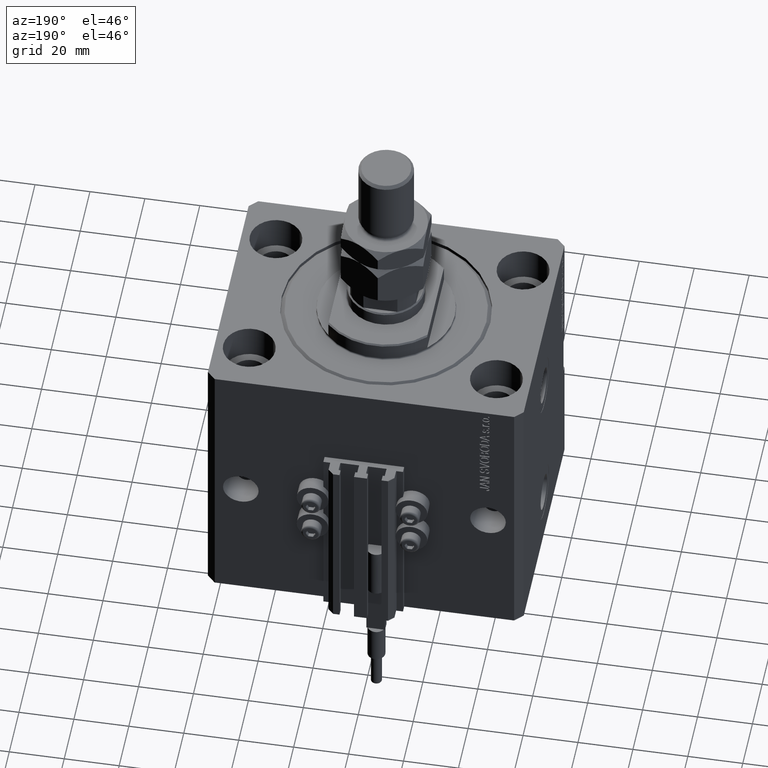
[diagram: clean part render]
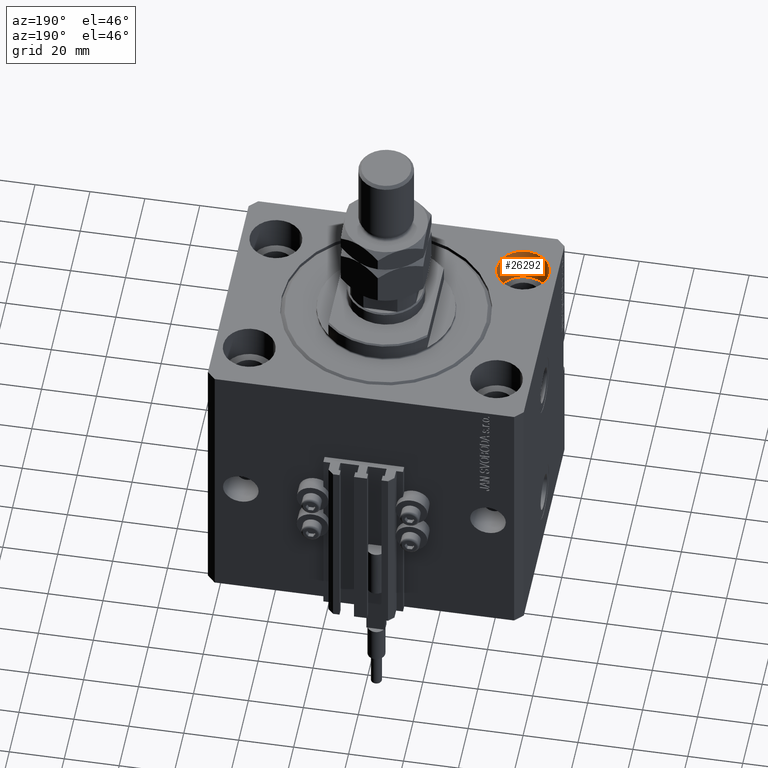
[diagram: same view with one face highlighted and labeled with its STEP entity id]
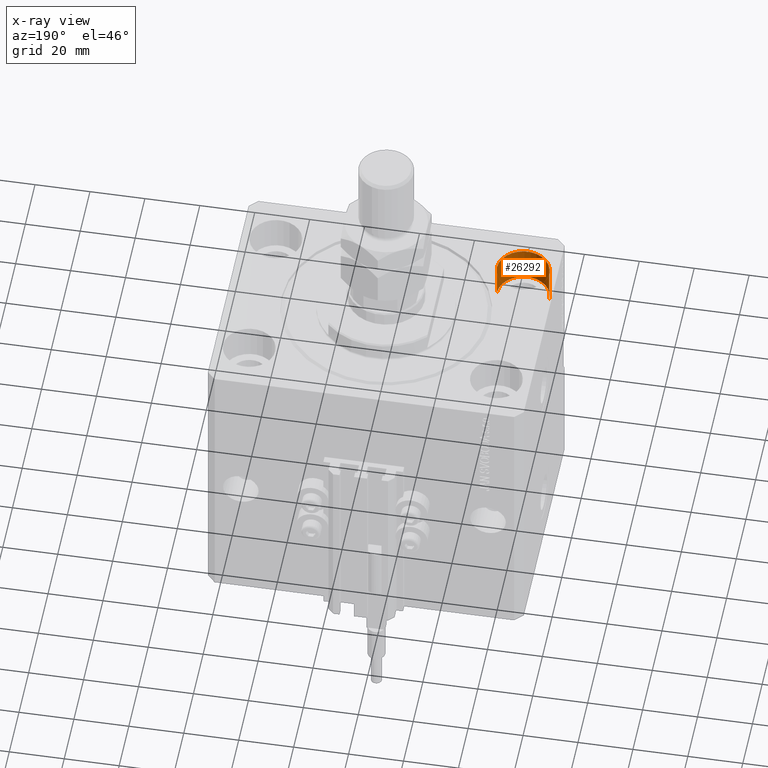
[diagram: x-ray of the same camera — body ghosted, the highlighted face saturated]
A machine part, auxiliary view. The second image highlights one B-rep face of the part: STEP entity #26292.
The next image is the same camera in x-ray: the body ghosted, the highlighted face saturated — about 0% of this face is hidden behind the body in this view.
In plain terms, the highlighted cylindrical surface (edge-blend (fillet) strip) has radius 9.5 mm, axis along (0, 0, 1).
Its self-contained STEP definition (entity closure, byte-faithful):
#984 = AXIS2_PLACEMENT_3D ( 'NONE', #48325, #45715, #2361 ) ;
#2361 = DIRECTION ( 'NONE',  ( 1.000000000000000000, 0.000000000000000000, 0.000000000000000000 ) ) ;
#2521 = ORIENTED_EDGE ( 'NONE', *, *, #39406, .F. ) ;
#2628 = CIRCLE ( 'NONE', #984, 9.500000000000001776 ) ;
#5142 = DIRECTION ( 'NONE',  ( -0.000000000000000000, -0.000000000000000000, 1.000000000000000000 ) ) ;
#5429 = VERTEX_POINT ( 'NONE', #21207 ) ;
#7699 = ORIENTED_EDGE ( 'NONE', *, *, #34744, .T. ) ;
#8762 = CARTESIAN_POINT ( 'NONE',  ( -54.50000000000000000, -27.49999999999999645, -13.00000000000000000 ) ) ;
#8875 = EDGE_CURVE ( 'NONE', #5429, #16044, #2628, .T. ) ;
#12256 = DIRECTION ( 'NONE',  ( -0.000000000000000000, -0.000000000000000000, 1.000000000000000000 ) ) ;
#13161 = DIRECTION ( 'NONE',  ( 1.000000000000000000, 0.000000000000000000, 0.000000000000000000 ) ) ;
#13666 = CARTESIAN_POINT ( 'NONE',  ( -45.00000000000000000, -27.49999999999999645, 0.000000000000000000 ) ) ;
#16044 = VERTEX_POINT ( 'NONE', #20686 ) ;
#17024 = LINE ( 'NONE', #8762, #21968 ) ;
#17801 = ORIENTED_EDGE ( 'NONE', *, *, #8875, .F. ) ;
#19674 = AXIS2_PLACEMENT_3D ( 'NONE', #13666, #43891, #13161 ) ;
#20686 = CARTESIAN_POINT ( 'NONE',  ( -35.50000000000000000, -27.49999999999999645, -13.00000000000000000 ) ) ;
#21207 = CARTESIAN_POINT ( 'NONE',  ( -54.50000000000000000, -27.49999999999999645, -13.00000000000000000 ) ) ;
#21860 = EDGE_CURVE ( 'NONE', #5429, #30592, #17024, .T. ) ;
#21968 = VECTOR ( 'NONE', #5142, 1000.000000000000000 ) ;
#25023 = CARTESIAN_POINT ( 'NONE',  ( -35.50000000000000000, -27.49999999999999645, 0.000000000000000000 ) ) ;
#26292 = ADVANCED_FACE ( 'NONE', ( #43525 ), #35795, .F. ) ;
#28057 = CARTESIAN_POINT ( 'NONE',  ( -45.00000000000000000, -27.49999999999999645, -13.00000000000000000 ) ) ;
#30592 = VERTEX_POINT ( 'NONE', #33494 ) ;
#33494 = CARTESIAN_POINT ( 'NONE',  ( -54.50000000000000000, -27.49999999999999645, 0.000000000000000000 ) ) ;
#34744 = EDGE_CURVE ( 'NONE', #30592, #49308, #46052, .T. ) ;
#35795 = CYLINDRICAL_SURFACE ( 'NONE', #36058, 9.500000000000001776 ) ;
#36058 = AXIS2_PLACEMENT_3D ( 'NONE', #28057, #43783, #39656 ) ;
#39123 = CARTESIAN_POINT ( 'NONE',  ( -35.50000000000000000, -27.49999999999999645, -13.00000000000000000 ) ) ;
#39370 = LINE ( 'NONE', #39123, #40302 ) ;
#39406 = EDGE_CURVE ( 'NONE', #16044, #49308, #39370, .T. ) ;
#39656 = DIRECTION ( 'NONE',  ( 1.000000000000000000, 0.000000000000000000, 0.000000000000000000 ) ) ;
#40302 = VECTOR ( 'NONE', #12256, 1000.000000000000000 ) ;
#41512 = ORIENTED_EDGE ( 'NONE', *, *, #21860, .T. ) ;
#43525 = FACE_OUTER_BOUND ( 'NONE', #48988, .T. ) ;
#43783 = DIRECTION ( 'NONE',  ( -0.000000000000000000, -0.000000000000000000, 1.000000000000000000 ) ) ;
#43891 = DIRECTION ( 'NONE',  ( 0.000000000000000000, 0.000000000000000000, 1.000000000000000000 ) ) ;
#45715 = DIRECTION ( 'NONE',  ( 0.000000000000000000, 0.000000000000000000, 1.000000000000000000 ) ) ;
#46052 = CIRCLE ( 'NONE', #19674, 9.500000000000001776 ) ;
#48325 = CARTESIAN_POINT ( 'NONE',  ( -45.00000000000000000, -27.49999999999999645, -13.00000000000000000 ) ) ;
#48988 = EDGE_LOOP ( 'NONE', ( #17801, #41512, #7699, #2521 ) ) ;
#49308 = VERTEX_POINT ( 'NONE', #25023 ) ;